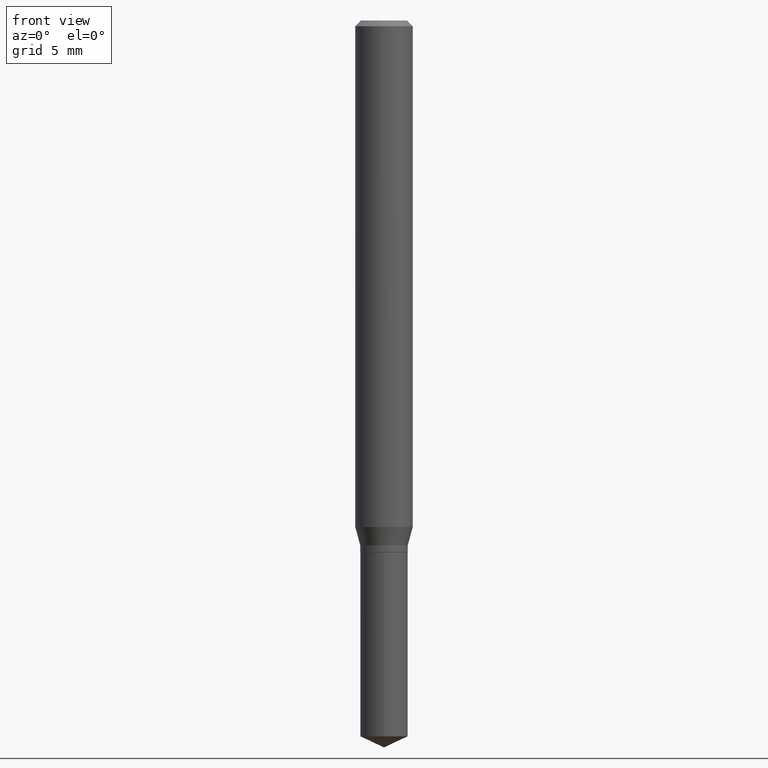
[diagram: clean part render]
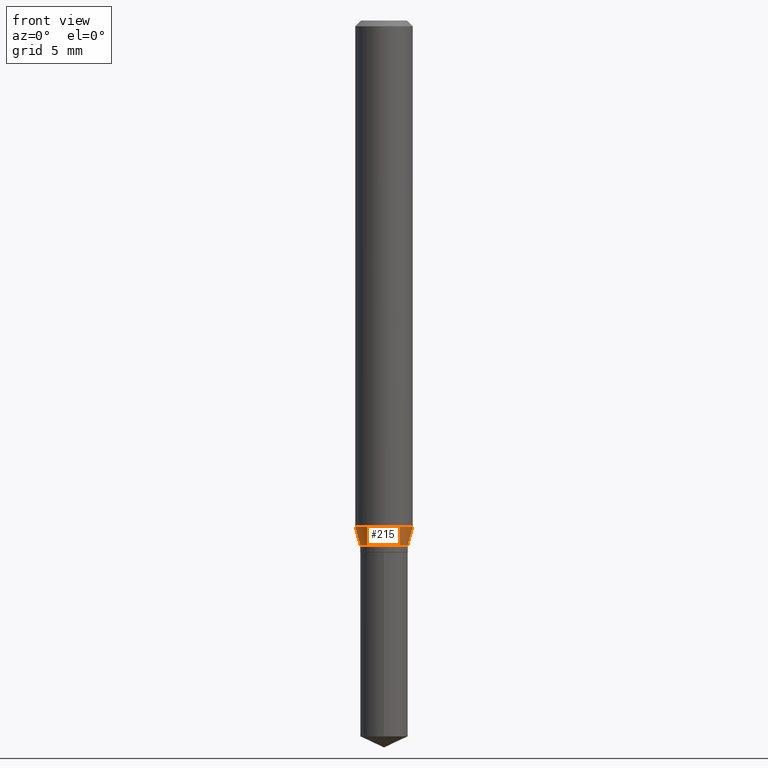
[diagram: same view with one face highlighted and labeled with its STEP entity id]
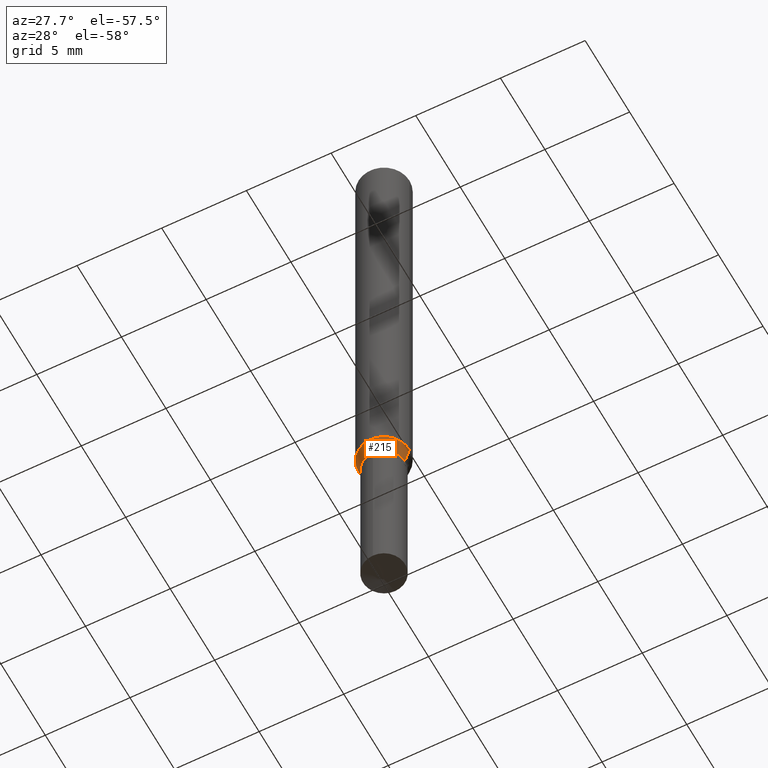
[diagram: same view with one face highlighted and labeled with its STEP entity id]
A machine part, front view. The second image highlights one B-rep face of the part: STEP entity #215.
A second angle (auxiliary view) of the same face is appended — the face is thin or edge-on in the first view.
In plain terms, the highlighted conical surface has half-angle 15 deg.
Its self-contained STEP definition (entity closure, byte-faithful):
#1 = ORIENTED_EDGE ( 'NONE', *, *, #321, .F. ) ;
#26 = EDGE_CURVE ( 'NONE', #200, #238, #287, .T. ) ;
#59 = DIRECTION ( 'NONE',  ( -0.2588190451025211281, 5.211531920934547886E-15, 0.9659258262890679791 ) ) ;
#65 = VECTOR ( 'NONE', #490, 39.37007874015748854 ) ;
#86 = VECTOR ( 'NONE', #59, 39.37007874015748854 ) ;
#101 = CARTESIAN_POINT ( 'NONE',  ( 2.640617216918710269E-29, -3.770101549682828202E-15, -1.079799999999999871 ) ) ;
#103 = CARTESIAN_POINT ( 'NONE',  ( -0.05905000000000013016, -3.219570687426562421E-15, -1.042292889383932275 ) ) ;
#108 = VERTEX_POINT ( 'NONE', #177 ) ;
#109 = DIRECTION ( 'NONE',  ( 1.000000000000000000, -6.982962677686265133E-15, 0.000000000000000000 ) ) ;
#125 = VERTEX_POINT ( 'NONE', #103 ) ;
#126 = AXIS2_PLACEMENT_3D ( 'NONE', #181, #260, #109 ) ;
#148 = CONICAL_SURFACE ( 'NONE', #213, 0.04900000000000000189, 0.2617993877991498519 ) ;
#163 = ORIENTED_EDGE ( 'NONE', *, *, #350, .F. ) ;
#169 = DIRECTION ( 'NONE',  ( -2.445468806185136597E-29, 3.491481338843145583E-15, 1.000000000000000000 ) ) ;
#175 = CARTESIAN_POINT ( 'NONE',  ( 0.04900000000000000189, -4.112266720889454734E-15, -1.079799999999999871 ) ) ;
#177 = CARTESIAN_POINT ( 'NONE',  ( 0.05905000000000013016, -4.051490119010276834E-15, -1.042292889383932275 ) ) ;
#181 = CARTESIAN_POINT ( 'NONE',  ( 2.548894747896981687E-29, -3.639146172892902703E-15, -1.042292889383932275 ) ) ;
#186 = DIRECTION ( 'NONE',  ( 1.000000000000000000, -6.982962677686263555E-15, 0.000000000000000000 ) ) ;
#200 = VERTEX_POINT ( 'NONE', #273 ) ;
#213 = AXIS2_PLACEMENT_3D ( 'NONE', #393, #228, #186 ) ;
#215 = ADVANCED_FACE ( 'NONE', ( #310 ), #148, .T. ) ;
#228 = DIRECTION ( 'NONE',  ( -2.445468806185136597E-29, 3.491481338843145583E-15, 1.000000000000000000 ) ) ;
#238 = VERTEX_POINT ( 'NONE', #175 ) ;
#244 = ORIENTED_EDGE ( 'NONE', *, *, #296, .T. ) ;
#260 = DIRECTION ( 'NONE',  ( -2.445468806185136597E-29, 3.491481338843145583E-15, 1.000000000000000000 ) ) ;
#273 = CARTESIAN_POINT ( 'NONE',  ( -0.04900000000000000189, -3.446725126666165335E-15, -1.079799999999999871 ) ) ;
#277 = ORIENTED_EDGE ( 'NONE', *, *, #26, .T. ) ;
#287 = CIRCLE ( 'NONE', #420, 0.04900000000000000189 ) ;
#296 = EDGE_CURVE ( 'NONE', #238, #108, #360, .T. ) ;
#310 = FACE_OUTER_BOUND ( 'NONE', #464, .T. ) ;
#311 = CIRCLE ( 'NONE', #126, 0.05905000000000013016 ) ;
#321 = EDGE_CURVE ( 'NONE', #125, #108, #311, .T. ) ;
#329 = CARTESIAN_POINT ( 'NONE',  ( 0.04900000000000000189, -4.112266720889454734E-15, -1.079799999999999871 ) ) ;
#350 = EDGE_CURVE ( 'NONE', #200, #125, #362, .T. ) ;
#360 = LINE ( 'NONE', #329, #65 ) ;
#362 = LINE ( 'NONE', #441, #86 ) ;
#382 = DIRECTION ( 'NONE',  ( 1.000000000000000000, -6.982962677686263555E-15, 0.000000000000000000 ) ) ;
#393 = CARTESIAN_POINT ( 'NONE',  ( 2.640617216918710269E-29, -3.770101549682828202E-15, -1.079799999999999871 ) ) ;
#420 = AXIS2_PLACEMENT_3D ( 'NONE', #101, #169, #382 ) ;
#441 = CARTESIAN_POINT ( 'NONE',  ( -0.04900000000000000189, -3.421935609160378802E-15, -1.079799999999999871 ) ) ;
#464 = EDGE_LOOP ( 'NONE', ( #163, #277, #244, #1 ) ) ;
#490 = DIRECTION ( 'NONE',  ( 0.2588190451025211281, 1.565188264969622954E-15, 0.9659258262890679791 ) ) ;